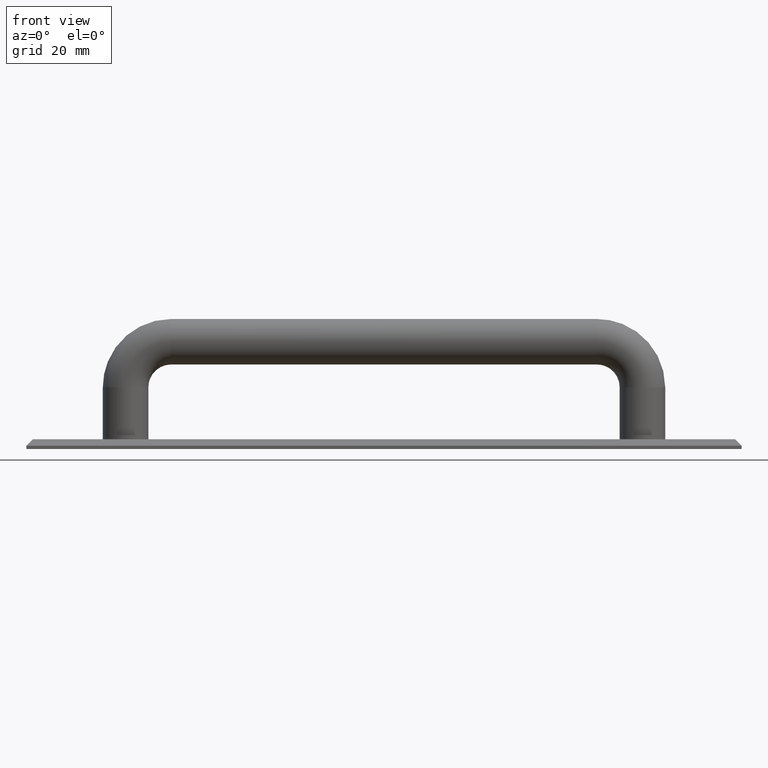
[diagram: clean part render]
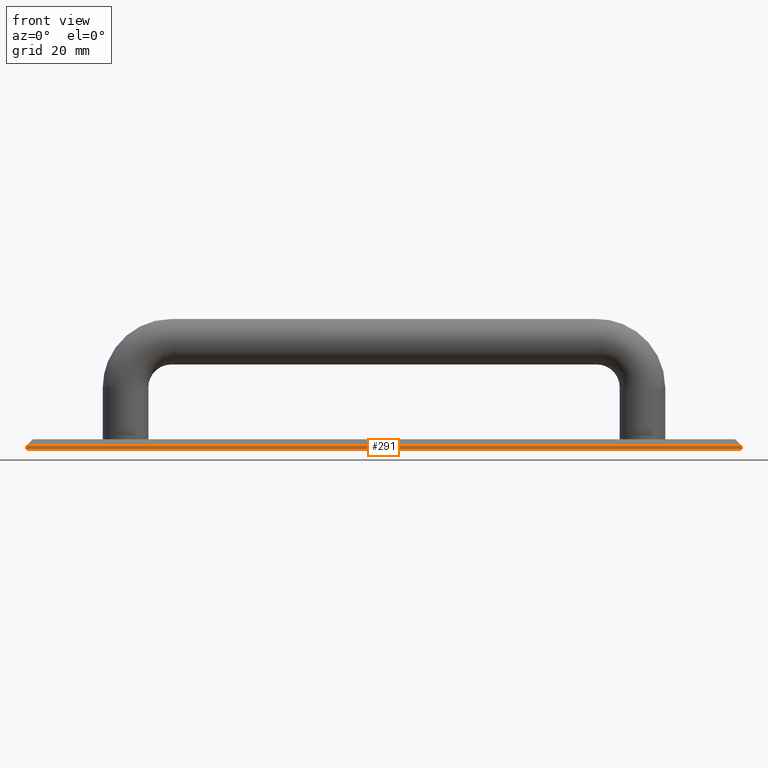
[diagram: same view with one face highlighted and labeled with its STEP entity id]
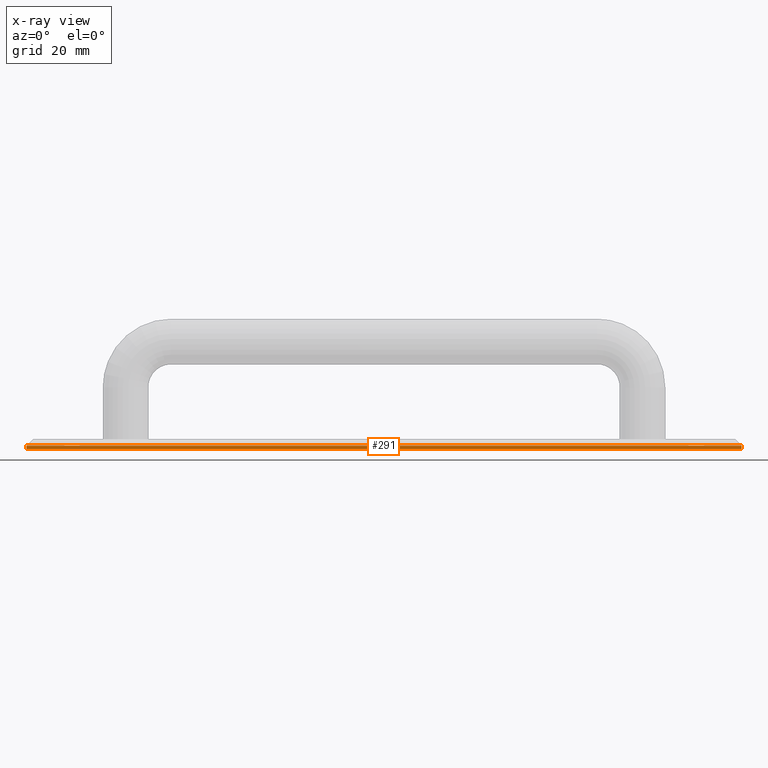
[diagram: x-ray of the same camera — body ghosted, the highlighted face saturated]
A machine part, front view. The second image highlights one B-rep face of the part: STEP entity #291.
The next image is the same camera in x-ray: the body ghosted, the highlighted face saturated — about 0% of this face is hidden behind the body in this view.
In plain terms, the highlighted planar face has unit normal (0, -1, 0).
Its self-contained STEP definition (entity closure, byte-faithful):
#24=LINE('',#449,#44);
#28=LINE('',#457,#48);
#33=LINE('',#466,#53);
#36=LINE('',#484,#56);
#44=VECTOR('',#367,220.);
#48=VECTOR('',#375,1.);
#53=VECTOR('',#382,1.);
#56=VECTOR('',#407,220.);
#65=PLANE('',#324);
#101=FACE_OUTER_BOUND('',#133,.T.);
#133=EDGE_LOOP('',(#259,#260,#261,#262));
#155=VERTEX_POINT('',#429);
#163=VERTEX_POINT('',#448);
#165=VERTEX_POINT('',#456);
#168=VERTEX_POINT('',#464);
#188=EDGE_CURVE('',#155,#163,#24,.T.);
#192=EDGE_CURVE('',#165,#163,#28,.T.);
#197=EDGE_CURVE('',#168,#155,#33,.T.);
#204=EDGE_CURVE('',#168,#165,#36,.T.);
#259=ORIENTED_EDGE('',*,*,#188,.F.);
#260=ORIENTED_EDGE('',*,*,#197,.F.);
#261=ORIENTED_EDGE('',*,*,#204,.T.);
#262=ORIENTED_EDGE('',*,*,#192,.T.);
#291=ADVANCED_FACE('',(#101),#65,.T.);
#324=AXIS2_PLACEMENT_3D('',#483,#405,#406);
#367=DIRECTION('',(1.,1.79286569368412E-32,0.));
#375=DIRECTION('',(0.,0.,1.));
#382=DIRECTION('',(0.,0.,1.));
#405=DIRECTION('center_axis',(1.79286569368412E-32,-1.,0.));
#406=DIRECTION('ref_axis',(1.,1.79286569368412E-32,0.));
#407=DIRECTION('',(1.,1.79286569368412E-32,0.));
#429=CARTESIAN_POINT('',(0.,0.,1.));
#448=CARTESIAN_POINT('',(220.,3.94430452610506E-30,1.));
#449=CARTESIAN_POINT('',(55.,0.,1.));
#456=CARTESIAN_POINT('',(220.,3.94430452610506E-30,0.));
#457=CARTESIAN_POINT('',(220.,3.94430452610506E-30,0.));
#464=CARTESIAN_POINT('',(0.,0.,0.));
#466=CARTESIAN_POINT('',(0.,0.,0.));
#483=CARTESIAN_POINT('Origin',(0.,0.,0.));
#484=CARTESIAN_POINT('',(0.,0.,0.));